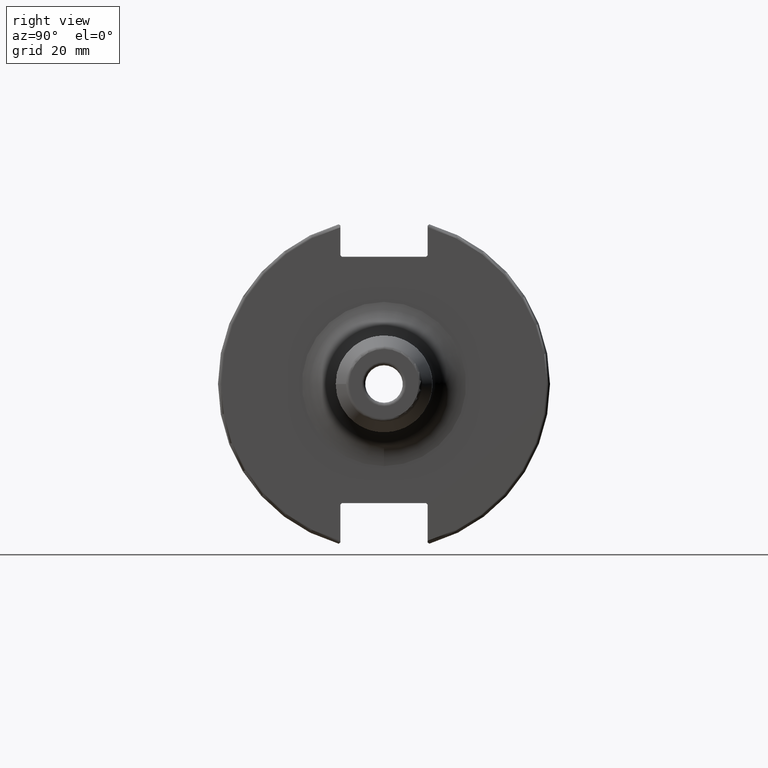
[diagram: clean part render]
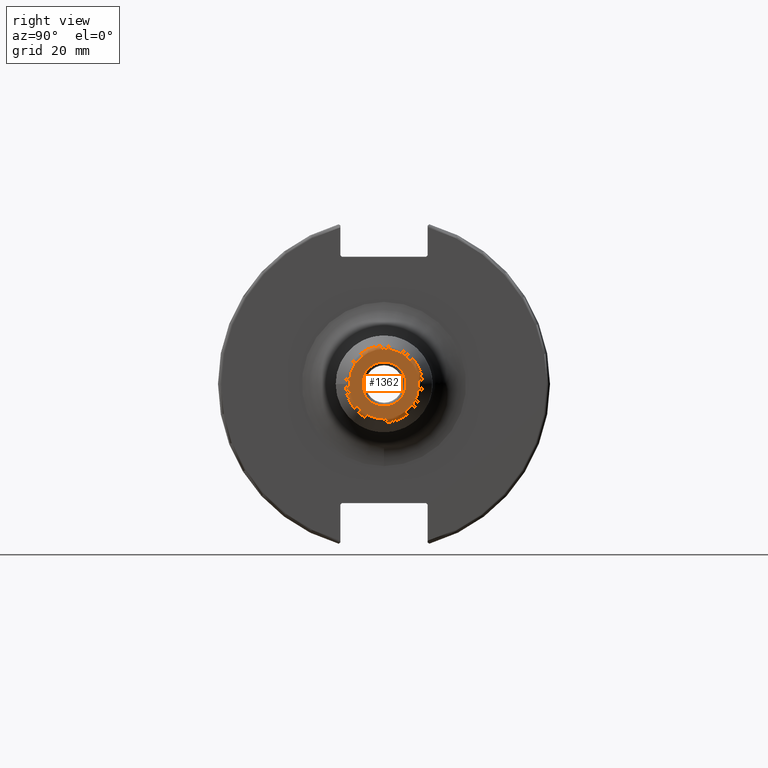
[diagram: same view with one face highlighted and labeled with its STEP entity id]
A machine part, right view. The second image highlights one B-rep face of the part: STEP entity #1362.
In plain terms, the highlighted planar face has unit normal (1, 0, 0).
Its self-contained STEP definition (entity closure, byte-faithful):
#34=PLANE('',#1484);
#70=FACE_BOUND('',#204,.T.);
#120=FACE_OUTER_BOUND('',#203,.T.);
#203=EDGE_LOOP('',(#971));
#204=EDGE_LOOP('',(#972));
#300=CIRCLE('',#1480,6.55625);
#304=CIRCLE('',#1485,10.3629297391925);
#593=VERTEX_POINT('',#2166);
#596=VERTEX_POINT('',#2174);
#739=EDGE_CURVE('',#593,#593,#300,.T.);
#743=EDGE_CURVE('',#596,#596,#304,.T.);
#971=ORIENTED_EDGE('',*,*,#743,.F.);
#972=ORIENTED_EDGE('',*,*,#739,.F.);
#1362=ADVANCED_FACE('',(#120,#70),#34,.T.);
#1480=AXIS2_PLACEMENT_3D('',#2167,#1676,#1677);
#1484=AXIS2_PLACEMENT_3D('',#2173,#1684,#1685);
#1485=AXIS2_PLACEMENT_3D('',#2175,#1686,#1687);
#1676=DIRECTION('center_axis',(1.,0.,0.));
#1677=DIRECTION('ref_axis',(0.,-1.22464679914735E-16,1.));
#1684=DIRECTION('center_axis',(1.,0.,0.));
#1685=DIRECTION('ref_axis',(0.,0.,-1.));
#1686=DIRECTION('center_axis',(-1.,0.,0.));
#1687=DIRECTION('ref_axis',(0.,-1.,1.83697019872103E-16));
#2166=CARTESIAN_POINT('',(66.8,1.60581811538197E-15,-6.55625));
#2167=CARTESIAN_POINT('Origin',(66.8,0.,0.));
#2173=CARTESIAN_POINT('Origin',(66.8,5.02457496772296E-16,0.));
#2174=CARTESIAN_POINT('',(66.8,-1.2690928734891E-15,10.3629297391925));
#2175=CARTESIAN_POINT('Origin',(66.8,0.,0.));